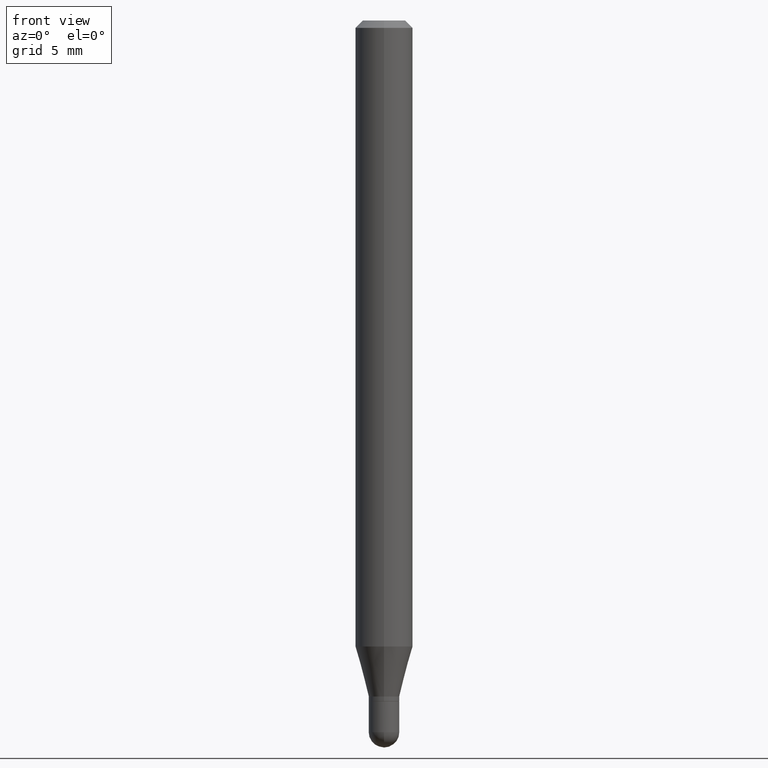
[diagram: clean part render]
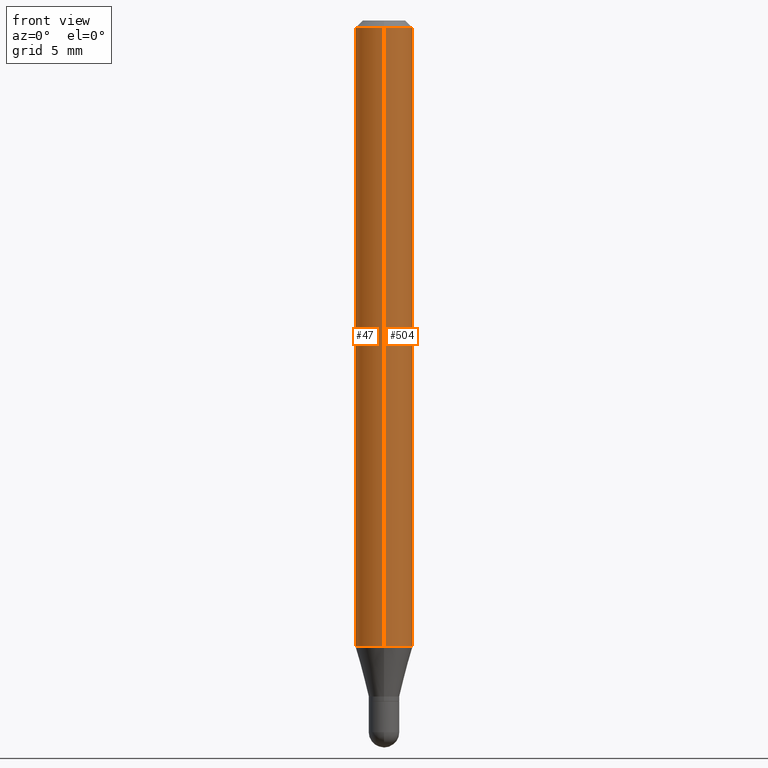
[diagram: same view with one multi-face feature highlighted, each face labeled with its STEP entity id]
A machine part, front view. The highlighted faces form ONE feature: a constant-radius fillet chain: 2 tangent blend faces with common blend radius 1.4999 mm. The faces share edges in the B-rep.
Their STEP definitions:
[1] entity #47 (Cylinder):
#47 = ADVANCED_FACE ( 'NONE', ( #221 ), #294, .T. ) ;
#59 = ORIENTED_EDGE ( 'NONE', *, *, #307, .T. ) ;
#77 = VECTOR ( 'NONE', #227, 39.37007874015748143 ) ;
#84 = DIRECTION ( 'NONE',  ( -2.445482629728212427E-29, 3.491461542742673590E-15, 1.000000000000000000 ) ) ;
#94 = DIRECTION ( 'NONE',  ( -2.445482629728212427E-29, 3.491461542742673984E-15, 1.000000000000000000 ) ) ;
#111 = LINE ( 'NONE', #422, #77 ) ;
#137 = EDGE_CURVE ( 'NONE', #152, #202, #416, .T. ) ;
#144 = CARTESIAN_POINT ( 'NONE',  ( 4.195754854663704065E-16, 0.05904999999999547416, -1.288282000251477655 ) ) ;
#145 = CIRCLE ( 'NONE', #324, 0.05904999999999999832 ) ;
#152 = VERTEX_POINT ( 'NONE', #455 ) ;
#167 = AXIS2_PLACEMENT_3D ( 'NONE', #331, #182, #493 ) ;
#177 = CARTESIAN_POINT ( 'NONE',  ( 0.000000000000000000, 0.000000000000000000, 0.000000000000000000 ) ) ;
#182 = DIRECTION ( 'NONE',  ( -2.445482629728212427E-29, 3.491461542742673984E-15, 1.000000000000000000 ) ) ;
#202 = VERTEX_POINT ( 'NONE', #430 ) ;
#203 = EDGE_CURVE ( 'NONE', #492, #152, #111, .T. ) ;
#221 = FACE_OUTER_BOUND ( 'NONE', #431, .T. ) ;
#227 = DIRECTION ( 'NONE',  ( -2.445482629728212427E-29, 3.491461542742673590E-15, 1.000000000000000000 ) ) ;
#248 = CARTESIAN_POINT ( 'NONE',  ( -4.123439461173739834E-16, -0.05904999999999999832, 2.061708040989548980E-16 ) ) ;
#249 = VECTOR ( 'NONE', #84, 39.37007874015748143 ) ;
#259 = EDGE_CURVE ( 'NONE', #280, #202, #362, .T. ) ;
#263 = DIRECTION ( 'NONE',  ( -2.445482629728212427E-29, 3.491461542742673984E-15, 1.000000000000000000 ) ) ;
#280 = VERTEX_POINT ( 'NONE', #466 ) ;
#284 = ORIENTED_EDGE ( 'NONE', *, *, #259, .T. ) ;
#294 = CYLINDRICAL_SURFACE ( 'NONE', #336, 0.05904999999999999832 ) ;
#307 = EDGE_CURVE ( 'NONE', #492, #280, #145, .T. ) ;
#311 = ORIENTED_EDGE ( 'NONE', *, *, #203, .F. ) ;
#324 = AXIS2_PLACEMENT_3D ( 'NONE', #509, #94, #476 ) ;
#331 = CARTESIAN_POINT ( 'NONE',  ( 3.668223944592340728E-31, -5.237192314114042679E-17, -0.01500000000000009139 ) ) ;
#336 = AXIS2_PLACEMENT_3D ( 'NONE', #177, #263, #451 ) ;
#362 = LINE ( 'NONE', #248, #249 ) ;
#416 = CIRCLE ( 'NONE', #167, 0.05904999999999999832 ) ;
#422 = CARTESIAN_POINT ( 'NONE',  ( 4.195754854663390985E-16, 0.05904999999999999832, -2.061708040989548980E-16 ) ) ;
#430 = CARTESIAN_POINT ( 'NONE',  ( -4.123439461173736383E-16, -0.05905000000000005383, -0.01499999999999988495 ) ) ;
#431 = EDGE_LOOP ( 'NONE', ( #311, #59, #284, #437 ) ) ;
#437 = ORIENTED_EDGE ( 'NONE', *, *, #137, .F. ) ;
#451 = DIRECTION ( 'NONE',  ( -6.982962677686265922E-15, -1.000000000000000000, 3.491461542742673984E-15 ) ) ;
#455 = CARTESIAN_POINT ( 'NONE',  ( 4.195754854663708009E-16, 0.05904999999999994975, -0.01500000000000029955 ) ) ;
#466 = CARTESIAN_POINT ( 'NONE',  ( -4.123439461173426755E-16, -0.05905000000000452248, -1.288282000251476989 ) ) ;
#476 = DIRECTION ( 'NONE',  ( -6.982962677686265922E-15, -1.000000000000000000, 4.626330217890369336E-15 ) ) ;
#492 = VERTEX_POINT ( 'NONE', #144 ) ;
#493 = DIRECTION ( 'NONE',  ( -6.982962677686265922E-15, -1.000000000000000000, 3.505890868245046092E-15 ) ) ;
#509 = CARTESIAN_POINT ( 'NONE',  ( 3.150471253806504168E-29, -4.497987060085641190E-15, -1.288282000251477433 ) ) ;
[2] entity #504 (Cylinder):
#18 = AXIS2_PLACEMENT_3D ( 'NONE', #87, #241, #163 ) ;
#75 = DIRECTION ( 'NONE',  ( -6.982962677686265922E-15, -1.000000000000000000, 3.491461542742673984E-15 ) ) ;
#77 = VECTOR ( 'NONE', #227, 39.37007874015748143 ) ;
#84 = DIRECTION ( 'NONE',  ( -2.445482629728212427E-29, 3.491461542742673590E-15, 1.000000000000000000 ) ) ;
#87 = CARTESIAN_POINT ( 'NONE',  ( 3.150471253806504168E-29, -4.497987060085641190E-15, -1.288282000251477433 ) ) ;
#93 = ORIENTED_EDGE ( 'NONE', *, *, #259, .F. ) ;
#111 = LINE ( 'NONE', #422, #77 ) ;
#118 = DIRECTION ( 'NONE',  ( -2.445482629728212427E-29, 3.491461542742673984E-15, 1.000000000000000000 ) ) ;
#122 = ORIENTED_EDGE ( 'NONE', *, *, #405, .T. ) ;
#124 = CIRCLE ( 'NONE', #190, 0.05904999999999999832 ) ;
#144 = CARTESIAN_POINT ( 'NONE',  ( 4.195754854663704065E-16, 0.05904999999999547416, -1.288282000251477655 ) ) ;
#152 = VERTEX_POINT ( 'NONE', #455 ) ;
#163 = DIRECTION ( 'NONE',  ( -6.982962677686265922E-15, -1.000000000000000000, 4.626330217890369336E-15 ) ) ;
#190 = AXIS2_PLACEMENT_3D ( 'NONE', #268, #118, #339 ) ;
#202 = VERTEX_POINT ( 'NONE', #430 ) ;
#203 = EDGE_CURVE ( 'NONE', #492, #152, #111, .T. ) ;
#227 = DIRECTION ( 'NONE',  ( -2.445482629728212427E-29, 3.491461542742673590E-15, 1.000000000000000000 ) ) ;
#232 = EDGE_LOOP ( 'NONE', ( #122, #505, #396, #93 ) ) ;
#241 = DIRECTION ( 'NONE',  ( -2.445482629728212427E-29, 3.491461542742673984E-15, 1.000000000000000000 ) ) ;
#248 = CARTESIAN_POINT ( 'NONE',  ( -4.123439461173739834E-16, -0.05904999999999999832, 2.061708040989548980E-16 ) ) ;
#249 = VECTOR ( 'NONE', #84, 39.37007874015748143 ) ;
#259 = EDGE_CURVE ( 'NONE', #280, #202, #362, .T. ) ;
#268 = CARTESIAN_POINT ( 'NONE',  ( 3.668223944592340728E-31, -5.237192314114042679E-17, -0.01500000000000009139 ) ) ;
#276 = DIRECTION ( 'NONE',  ( -2.445482629728212427E-29, 3.491461542742673984E-15, 1.000000000000000000 ) ) ;
#280 = VERTEX_POINT ( 'NONE', #466 ) ;
#292 = AXIS2_PLACEMENT_3D ( 'NONE', #494, #276, #75 ) ;
#339 = DIRECTION ( 'NONE',  ( -6.982962677686265922E-15, -1.000000000000000000, 3.505890868245046092E-15 ) ) ;
#362 = LINE ( 'NONE', #248, #249 ) ;
#396 = ORIENTED_EDGE ( 'NONE', *, *, #488, .F. ) ;
#405 = EDGE_CURVE ( 'NONE', #280, #492, #441, .T. ) ;
#419 = FACE_OUTER_BOUND ( 'NONE', #232, .T. ) ;
#421 = CYLINDRICAL_SURFACE ( 'NONE', #292, 0.05904999999999999832 ) ;
#422 = CARTESIAN_POINT ( 'NONE',  ( 4.195754854663390985E-16, 0.05904999999999999832, -2.061708040989548980E-16 ) ) ;
#430 = CARTESIAN_POINT ( 'NONE',  ( -4.123439461173736383E-16, -0.05905000000000005383, -0.01499999999999988495 ) ) ;
#441 = CIRCLE ( 'NONE', #18, 0.05904999999999999832 ) ;
#455 = CARTESIAN_POINT ( 'NONE',  ( 4.195754854663708009E-16, 0.05904999999999994975, -0.01500000000000029955 ) ) ;
#466 = CARTESIAN_POINT ( 'NONE',  ( -4.123439461173426755E-16, -0.05905000000000452248, -1.288282000251476989 ) ) ;
#488 = EDGE_CURVE ( 'NONE', #202, #152, #124, .T. ) ;
#492 = VERTEX_POINT ( 'NONE', #144 ) ;
#494 = CARTESIAN_POINT ( 'NONE',  ( 0.000000000000000000, 0.000000000000000000, 0.000000000000000000 ) ) ;
#504 = ADVANCED_FACE ( 'NONE', ( #419 ), #421, .T. ) ;
#505 = ORIENTED_EDGE ( 'NONE', *, *, #203, .T. ) ;